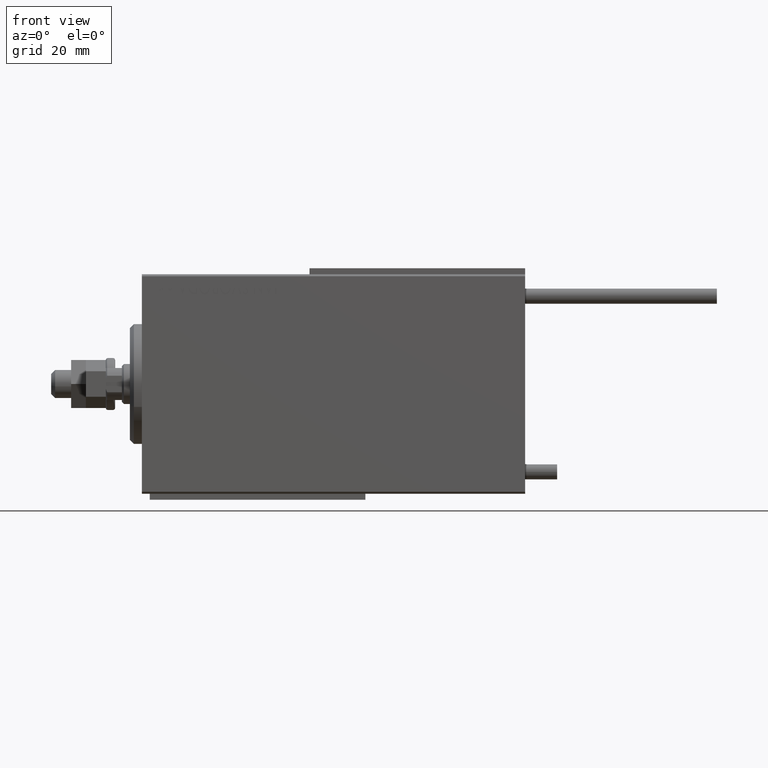
[diagram: clean part render]
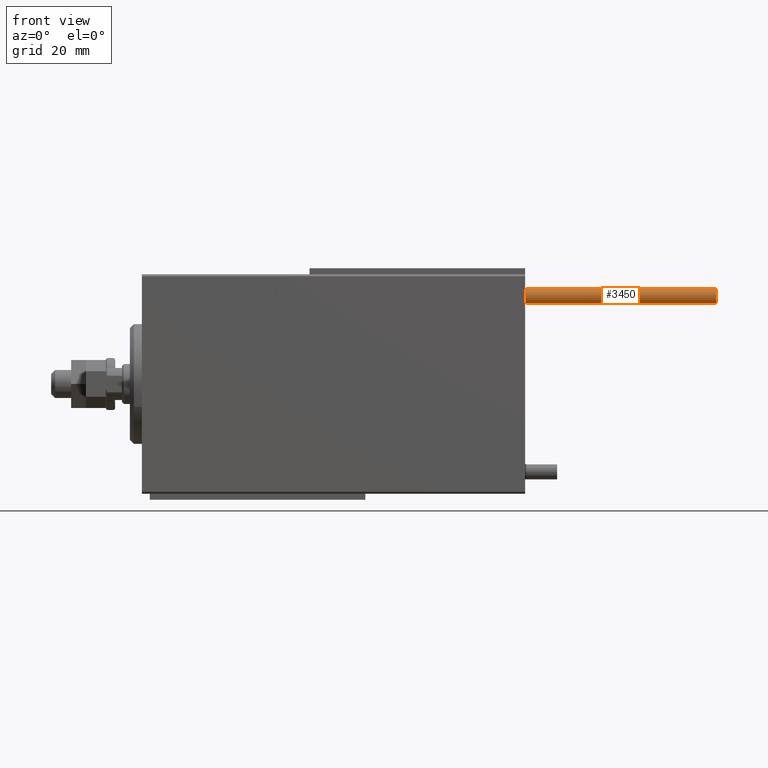
[diagram: same view with one face highlighted and labeled with its STEP entity id]
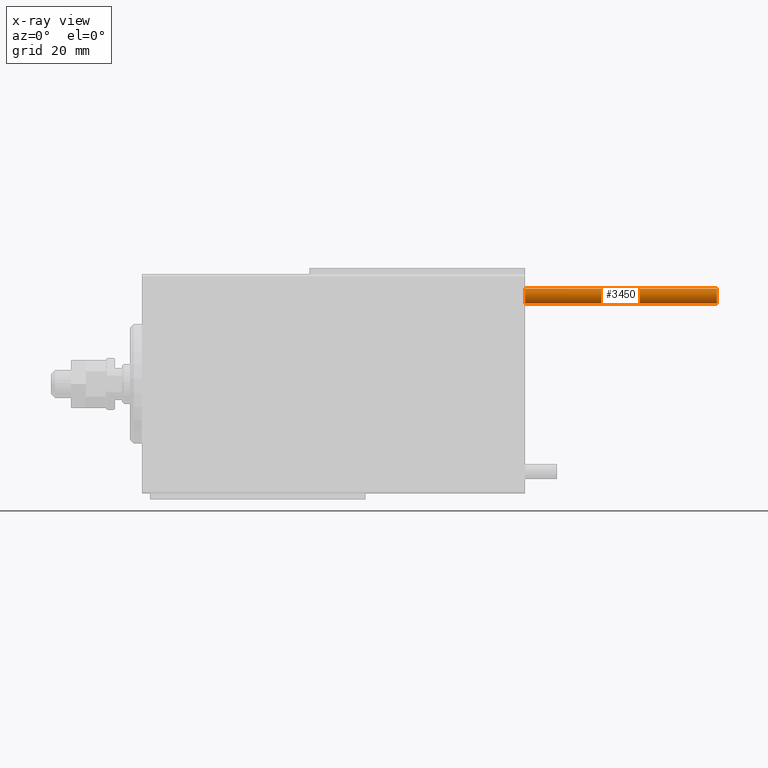
[diagram: x-ray of the same camera — body ghosted, the highlighted face saturated]
A machine part, front view. The second image highlights one B-rep face of the part: STEP entity #3450.
The next image is the same camera in x-ray: the body ghosted, the highlighted face saturated — about 0% of this face is hidden behind the body in this view.
In plain terms, the highlighted cylindrical surface (edge-blend (fillet) strip) has radius 1.9 mm, axis along (-1, -0, 0).
Its self-contained STEP definition (entity closure, byte-faithful):
#49 = EDGE_LOOP ( 'NONE', ( #24414, #4471, #43471, #11688 ) ) ;
#3450 = ADVANCED_FACE ( 'NONE', ( #13234 ), #6354, .T. ) ;
#4346 = DIRECTION ( 'NONE',  ( 0.000000000000000000, 0.000000000000000000, 1.000000000000000000 ) ) ;
#4471 = ORIENTED_EDGE ( 'NONE', *, *, #29646, .F. ) ;
#4949 = CARTESIAN_POINT ( 'NONE',  ( -1.899999999999999467, 0.000000000000000000, 0.000000000000000000 ) ) ;
#6354 = CYLINDRICAL_SURFACE ( 'NONE', #12526, 1.899999999999999467 ) ;
#6434 = DIRECTION ( 'NONE',  ( 1.000000000000000000, 0.000000000000000000, 0.000000000000000000 ) ) ;
#7276 = CIRCLE ( 'NONE', #35611, 1.899999999999999467 ) ;
#10245 = DIRECTION ( 'NONE',  ( 0.000000000000000000, 0.000000000000000000, 1.000000000000000000 ) ) ;
#11285 = VECTOR ( 'NONE', #36098, 1000.000000000000000 ) ;
#11688 = ORIENTED_EDGE ( 'NONE', *, *, #33913, .T. ) ;
#12406 = CARTESIAN_POINT ( 'NONE',  ( 1.899999999999999467, 2.326828918379970872E-16, 0.000000000000000000 ) ) ;
#12526 = AXIS2_PLACEMENT_3D ( 'NONE', #21590, #47973, #45135 ) ;
#13234 = FACE_OUTER_BOUND ( 'NONE', #49, .T. ) ;
#13304 = CARTESIAN_POINT ( 'NONE',  ( 0.000000000000000000, 0.000000000000000000, 0.000000000000000000 ) ) ;
#14538 = EDGE_CURVE ( 'NONE', #27645, #16866, #28514, .T. ) ;
#14847 = CARTESIAN_POINT ( 'NONE',  ( -1.899999999999999467, 0.000000000000000000, 48.00000000000000000 ) ) ;
#16866 = VERTEX_POINT ( 'NONE', #4949 ) ;
#20464 = CARTESIAN_POINT ( 'NONE',  ( 1.899999999999999467, 2.326828918379970872E-16, 48.00000000000000000 ) ) ;
#20653 = CARTESIAN_POINT ( 'NONE',  ( -1.899999999999999467, 0.000000000000000000, 48.00000000000000000 ) ) ;
#21590 = CARTESIAN_POINT ( 'NONE',  ( 0.000000000000000000, 0.000000000000000000, 48.00000000000000000 ) ) ;
#24414 = ORIENTED_EDGE ( 'NONE', *, *, #47586, .F. ) ;
#27033 = VERTEX_POINT ( 'NONE', #12406 ) ;
#27645 = VERTEX_POINT ( 'NONE', #14847 ) ;
#28062 = LINE ( 'NONE', #20464, #38828 ) ;
#28514 = LINE ( 'NONE', #20653, #11285 ) ;
#29646 = EDGE_CURVE ( 'NONE', #27645, #48420, #45158, .T. ) ;
#31716 = DIRECTION ( 'NONE',  ( 1.000000000000000000, 0.000000000000000000, 0.000000000000000000 ) ) ;
#33913 = EDGE_CURVE ( 'NONE', #16866, #27033, #7276, .T. ) ;
#35611 = AXIS2_PLACEMENT_3D ( 'NONE', #13304, #10245, #6434 ) ;
#36098 = DIRECTION ( 'NONE',  ( -0.000000000000000000, -0.000000000000000000, -1.000000000000000000 ) ) ;
#38283 = CARTESIAN_POINT ( 'NONE',  ( 1.899999999999999467, 2.326828918379970872E-16, 48.00000000000000000 ) ) ;
#38815 = CARTESIAN_POINT ( 'NONE',  ( 0.000000000000000000, 0.000000000000000000, 48.00000000000000000 ) ) ;
#38828 = VECTOR ( 'NONE', #47580, 1000.000000000000000 ) ;
#39519 = AXIS2_PLACEMENT_3D ( 'NONE', #38815, #4346, #31716 ) ;
#43471 = ORIENTED_EDGE ( 'NONE', *, *, #14538, .T. ) ;
#45135 = DIRECTION ( 'NONE',  ( -1.000000000000000000, 0.000000000000000000, 0.000000000000000000 ) ) ;
#45158 = CIRCLE ( 'NONE', #39519, 1.899999999999999467 ) ;
#47580 = DIRECTION ( 'NONE',  ( -0.000000000000000000, -0.000000000000000000, -1.000000000000000000 ) ) ;
#47586 = EDGE_CURVE ( 'NONE', #48420, #27033, #28062, .T. ) ;
#47973 = DIRECTION ( 'NONE',  ( -0.000000000000000000, -0.000000000000000000, -1.000000000000000000 ) ) ;
#48420 = VERTEX_POINT ( 'NONE', #38283 ) ;